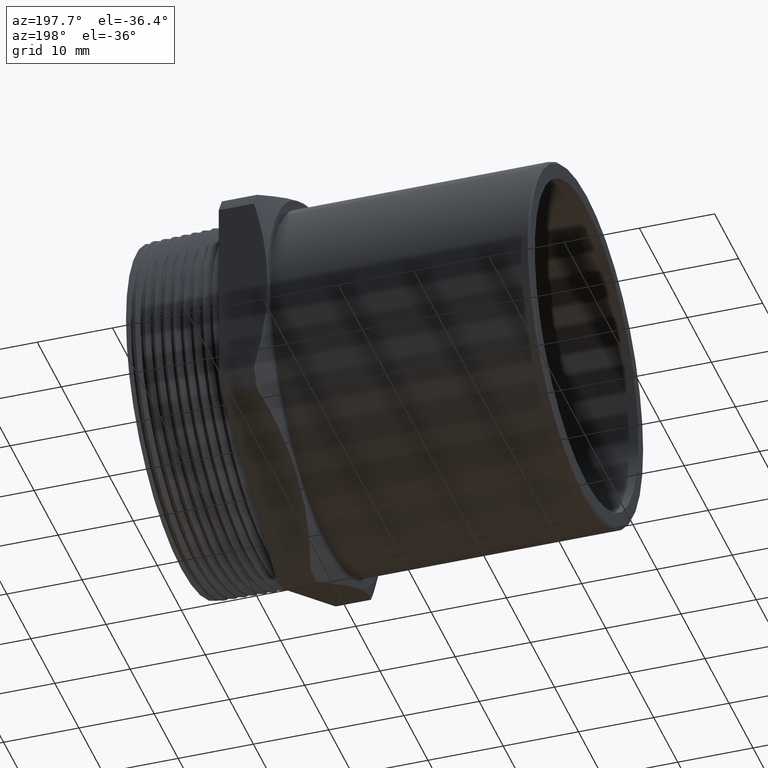
[diagram: clean part render]
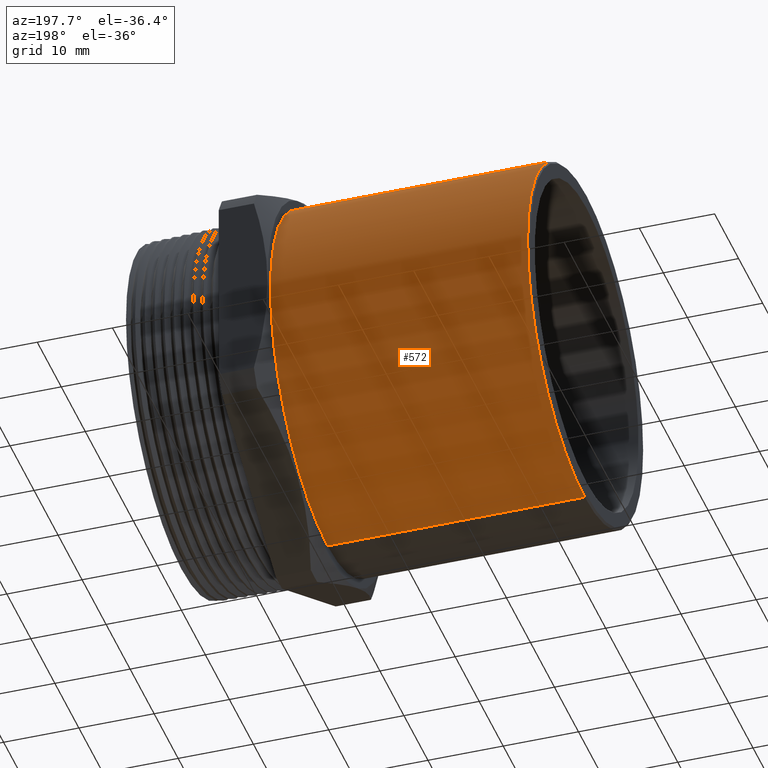
[diagram: same view with one face highlighted and labeled with its STEP entity id]
A machine part, auxiliary view. The second image highlights one B-rep face of the part: STEP entity #572.
In plain terms, the highlighted cylindrical surface (partial cylindrical patch) has radius 23.768 mm, axis along (-1, -0, -0).
Its self-contained STEP definition (entity closure, byte-faithful):
#517 = VERTEX_POINT ( 'NONE', #1967 ) ;
#572 = ADVANCED_FACE ( 'NONE', ( #2061 ), #2053, .T. ) ;
#574 = EDGE_LOOP ( 'NONE', ( #577, #588, #592, #594 ) ) ;
#577 = ORIENTED_EDGE ( 'NONE', *, *, #578, .T. ) ;
#578 = EDGE_CURVE ( 'NONE', #580, #581, #2038, .T. ) ;
#580 = VERTEX_POINT ( 'NONE', #2039 ) ;
#581 = VERTEX_POINT ( 'NONE', #2093 ) ;
#588 = ORIENTED_EDGE ( 'NONE', *, *, #590, .T. ) ;
#590 = EDGE_CURVE ( 'NONE', #581, #2899, #2083, .T. ) ;
#592 = ORIENTED_EDGE ( 'NONE', *, *, #2900, .T. ) ;
#594 = ORIENTED_EDGE ( 'NONE', *, *, #595, .F. ) ;
#595 = EDGE_CURVE ( 'NONE', #580, #517, #2073, .T. ) ;
#1967 = CARTESIAN_POINT ( 'NONE',  ( -2.109999999999999000, 0.0000000000000000000, 0.9357499999999999700 ) ) ;
#2034 = DIRECTION ( 'NONE',  ( 0.0000000000000000000, 0.0000000000000000000, 1.000000000000000000 ) ) ;
#2035 = DIRECTION ( 'NONE',  ( -1.000000000000000000, -0.0000000000000000000, -0.0000000000000000000 ) ) ;
#2036 = CARTESIAN_POINT ( 'NONE',  ( -0.7650000000000000100, 0.0000000000000000000, 0.0000000000000000000 ) ) ;
#2037 = AXIS2_PLACEMENT_3D ( 'NONE', #2036, #2035, #2034 ) ;
#2038 = CIRCLE ( 'NONE', #2037, 0.9357499999999999700 ) ;
#2039 = CARTESIAN_POINT ( 'NONE',  ( -0.7650000000000000100, 0.0000000000000000000, 0.9357499999999999700 ) ) ;
#2051 = DIRECTION ( 'NONE',  ( 0.0000000000000000000, 0.0000000000000000000, 1.000000000000000000 ) ) ;
#2052 = AXIS2_PLACEMENT_3D ( 'NONE', #2060, #2062, #2051 ) ;
#2053 = CYLINDRICAL_SURFACE ( 'NONE', #2052, 0.9357499999999999700 ) ;
#2060 = CARTESIAN_POINT ( 'NONE',  ( -0.5911096051061856000, 0.0000000000000000000, 0.0000000000000000000 ) ) ;
#2061 = FACE_OUTER_BOUND ( 'NONE', #574, .T. ) ;
#2062 = DIRECTION ( 'NONE',  ( -1.000000000000000000, -0.0000000000000000000, -0.0000000000000000000 ) ) ;
#2070 = DIRECTION ( 'NONE',  ( -1.000000000000000000, -0.0000000000000000000, -0.0000000000000000000 ) ) ;
#2071 = VECTOR ( 'NONE', #2070, 39.37007874015748100 ) ;
#2072 = CARTESIAN_POINT ( 'NONE',  ( -0.5911096051061856000, 0.0000000000000000000, 0.9357499999999999700 ) ) ;
#2073 = LINE ( 'NONE', #2072, #2071 ) ;
#2080 = DIRECTION ( 'NONE',  ( -1.000000000000000000, -0.0000000000000000000, -0.0000000000000000000 ) ) ;
#2081 = VECTOR ( 'NONE', #2080, 39.37007874015748100 ) ;
#2082 = CARTESIAN_POINT ( 'NONE',  ( -0.5911096051061856000, 1.145925395589289500E-016, -0.9357499999999999700 ) ) ;
#2083 = LINE ( 'NONE', #2082, #2081 ) ;
#2093 = CARTESIAN_POINT ( 'NONE',  ( -0.7650000000000000100, 1.145925395589289500E-016, -0.9357499999999999700 ) ) ;
#2749 = DIRECTION ( 'NONE',  ( 0.0000000000000000000, 0.0000000000000000000, -1.000000000000000000 ) ) ;
#2750 = DIRECTION ( 'NONE',  ( 1.000000000000000000, 0.0000000000000000000, 0.0000000000000000000 ) ) ;
#2751 = CARTESIAN_POINT ( 'NONE',  ( -2.109999999999999000, 0.0000000000000000000, 0.0000000000000000000 ) ) ;
#2752 = AXIS2_PLACEMENT_3D ( 'NONE', #2751, #2750, #2749 ) ;
#2753 = CIRCLE ( 'NONE', #2752, 0.9357499999999999700 ) ;
#2755 = CARTESIAN_POINT ( 'NONE',  ( -2.109999999999999000, 1.145925395589289500E-016, -0.9357499999999999700 ) ) ;
#2899 = VERTEX_POINT ( 'NONE', #2755 ) ;
#2900 = EDGE_CURVE ( 'NONE', #2899, #517, #2753, .T. ) ;